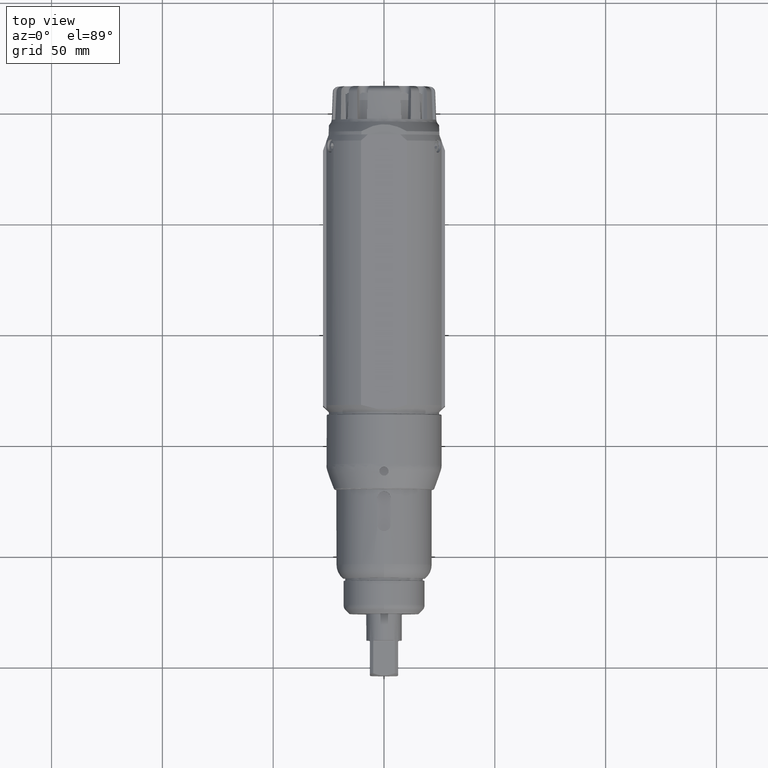
[diagram: clean part render]
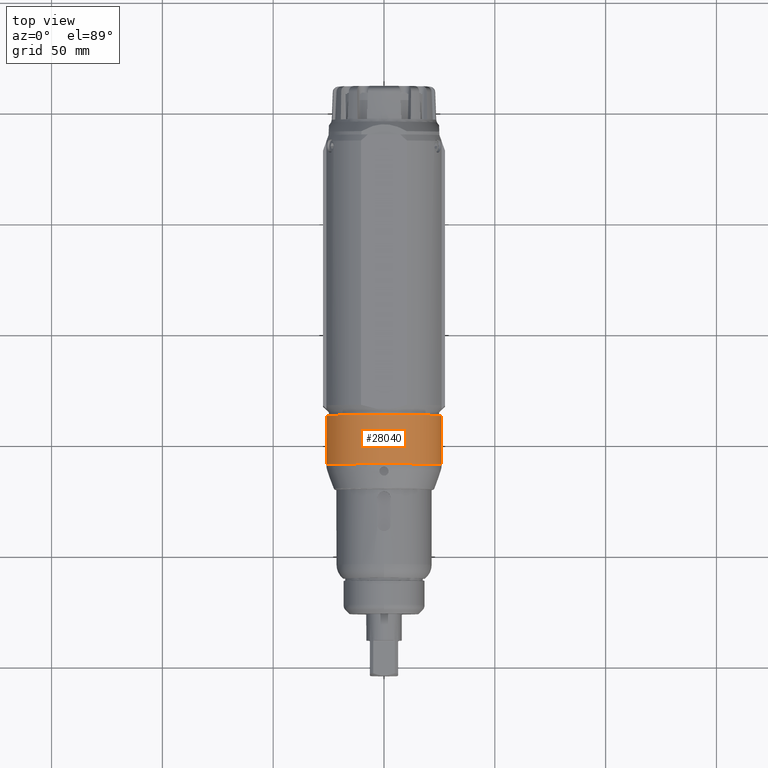
[diagram: same view with one face highlighted and labeled with its STEP entity id]
A machine part, top view. The second image highlights one B-rep face of the part: STEP entity #28040.
In plain terms, the highlighted cylindrical surface (bore or boss wall) has radius 26 mm, axis along (-0, 1, 0).
Its self-contained STEP definition (entity closure, byte-faithful):
#443=CYLINDRICAL_SURFACE('',#30201,26.);
#1654=LINE('',#48031,#3381);
#1936=LINE('',#51633,#3663);
#1937=LINE('',#51648,#3664);
#1938=LINE('',#51663,#3665);
#1939=LINE('',#51665,#3666);
#3381=VECTOR('',#33610,10.);
#3663=VECTOR('',#34860,10.);
#3664=VECTOR('',#34861,10.);
#3665=VECTOR('',#34862,10.);
#3666=VECTOR('',#34863,26.);
#5924=FACE_OUTER_BOUND('',#7551,.T.);
#7551=EDGE_LOOP('',(#22049,#22050,#22051,#22052,#22053,#22054,#22055,#22056,
#22057,#22058,#22059,#22060,#22061,#22062,#22063,#22064));
#9093=CIRCLE('',#30197,26.);
#9094=CIRCLE('',#30198,26.);
#9095=CIRCLE('',#30199,26.);
#9096=CIRCLE('',#30200,26.);
#9097=CIRCLE('',#30202,26.);
#9098=CIRCLE('',#30203,26.);
#10245=B_SPLINE_CURVE_WITH_KNOTS('',3,(#51635,#51636,#51637,#51638,#51639,
#51640,#51641,#51642),.UNSPECIFIED.,.F.,.F.,(4,2,2,4),(-0.116018653433451,
-0.0759485325404493,-0.0322967236980446,0.),.UNSPECIFIED.);
#10246=B_SPLINE_CURVE_WITH_KNOTS('',3,(#51643,#51644,#51645,#51646),
 .UNSPECIFIED.,.F.,.F.,(4,4),(1.63126811079099,1.85732828012416),
 .UNSPECIFIED.);
#10247=B_SPLINE_CURVE_WITH_KNOTS('',3,(#51650,#51651,#51652,#51653),
 .UNSPECIFIED.,.F.,.F.,(4,4),(3.34699343810627,3.57330786362146),
 .UNSPECIFIED.);
#10248=B_SPLINE_CURVE_WITH_KNOTS('',3,(#51655,#51656,#51657,#51658,#51659,
#51660,#51661,#51662),.UNSPECIFIED.,.F.,.F.,(4,2,2,4),(-0.143626844621684,
-0.10345805759626,-0.0595353790221382,-0.000139333396592233),
 .UNSPECIFIED.);
#11993=VERTEX_POINT('',#48015);
#11994=VERTEX_POINT('',#48030);
#12382=VERTEX_POINT('',#51586);
#12383=VERTEX_POINT('',#51588);
#12384=VERTEX_POINT('',#51590);
#12386=VERTEX_POINT('',#51603);
#12387=VERTEX_POINT('',#51619);
#12388=VERTEX_POINT('',#51632);
#12389=VERTEX_POINT('',#51634);
#12390=VERTEX_POINT('',#51647);
#12391=VERTEX_POINT('',#51649);
#12392=VERTEX_POINT('',#51654);
#12393=VERTEX_POINT('',#51664);
#12394=VERTEX_POINT('',#51666);
#15238=EDGE_CURVE('',#11993,#11994,#1654,.T.);
#15934=EDGE_CURVE('',#12382,#12383,#9093,.T.);
#15935=EDGE_CURVE('',#12383,#12384,#9094,.T.);
#15938=EDGE_CURVE('',#12386,#11993,#9095,.T.);
#15940=EDGE_CURVE('',#12387,#12382,#9096,.T.);
#15941=EDGE_CURVE('',#12388,#12387,#1936,.T.);
#15942=EDGE_CURVE('',#12389,#12388,#10245,.T.);
#15943=EDGE_CURVE('',#11994,#12389,#10246,.T.);
#15944=EDGE_CURVE('',#12390,#12386,#1937,.T.);
#15945=EDGE_CURVE('',#12391,#12390,#10247,.T.);
#15946=EDGE_CURVE('',#12392,#12391,#10248,.T.);
#15947=EDGE_CURVE('',#12384,#12392,#1938,.T.);
#15948=EDGE_CURVE('',#12383,#12393,#1939,.T.);
#15949=EDGE_CURVE('',#12393,#12394,#9097,.T.);
#15950=EDGE_CURVE('',#12394,#12393,#9098,.T.);
#22049=ORIENTED_EDGE('',*,*,#15941,.F.);
#22050=ORIENTED_EDGE('',*,*,#15942,.F.);
#22051=ORIENTED_EDGE('',*,*,#15943,.F.);
#22052=ORIENTED_EDGE('',*,*,#15238,.F.);
#22053=ORIENTED_EDGE('',*,*,#15938,.F.);
#22054=ORIENTED_EDGE('',*,*,#15944,.F.);
#22055=ORIENTED_EDGE('',*,*,#15945,.F.);
#22056=ORIENTED_EDGE('',*,*,#15946,.F.);
#22057=ORIENTED_EDGE('',*,*,#15947,.F.);
#22058=ORIENTED_EDGE('',*,*,#15935,.F.);
#22059=ORIENTED_EDGE('',*,*,#15948,.T.);
#22060=ORIENTED_EDGE('',*,*,#15949,.T.);
#22061=ORIENTED_EDGE('',*,*,#15950,.T.);
#22062=ORIENTED_EDGE('',*,*,#15948,.F.);
#22063=ORIENTED_EDGE('',*,*,#15934,.F.);
#22064=ORIENTED_EDGE('',*,*,#15940,.F.);
#28040=ADVANCED_FACE('',(#5924),#443,.T.);
#30197=AXIS2_PLACEMENT_3D('',#51589,#34850,#34851);
#30198=AXIS2_PLACEMENT_3D('',#51591,#34852,#34853);
#30199=AXIS2_PLACEMENT_3D('',#51618,#34854,#34855);
#30200=AXIS2_PLACEMENT_3D('',#51630,#34856,#34857);
#30201=AXIS2_PLACEMENT_3D('',#51631,#34858,#34859);
#30202=AXIS2_PLACEMENT_3D('',#51667,#34864,#34865);
#30203=AXIS2_PLACEMENT_3D('',#51668,#34866,#34867);
#33610=DIRECTION('',(4.96729109400403E-16,-1.,-5.92105642227079E-16));
#34850=DIRECTION('center_axis',(-4.96729109400403E-16,1.,5.92105642227079E-16));
#34851=DIRECTION('ref_axis',(-3.94129173741931E-15,5.92105642227077E-16,
-1.));
#34852=DIRECTION('center_axis',(-4.96729109400403E-16,1.,5.92105642227079E-16));
#34853=DIRECTION('ref_axis',(-3.94129173741931E-15,5.92105642227077E-16,
-1.));
#34854=DIRECTION('center_axis',(-4.96729109400403E-16,1.,5.92105642227079E-16));
#34855=DIRECTION('ref_axis',(-3.94129173741931E-15,5.92105642227077E-16,
-1.));
#34856=DIRECTION('center_axis',(-4.96729109400403E-16,1.,5.92105642227079E-16));
#34857=DIRECTION('ref_axis',(-3.94129173741931E-15,5.92105642227077E-16,
-1.));
#34858=DIRECTION('center_axis',(-4.96729109400403E-16,1.,5.92105642227079E-16));
#34859=DIRECTION('ref_axis',(-1.,-4.96729109400405E-16,3.94129173741931E-15));
#34860=DIRECTION('',(-4.96729109400403E-16,1.,5.92105642227079E-16));
#34861=DIRECTION('',(-4.96729109400403E-16,1.,5.92105642227079E-16));
#34862=DIRECTION('',(4.96729109400403E-16,-1.,-5.92105642227079E-16));
#34863=DIRECTION('',(4.96729109400403E-16,-1.,-5.92105642227079E-16));
#34864=DIRECTION('center_axis',(-4.96729109400403E-16,1.,5.92105642227079E-16));
#34865=DIRECTION('ref_axis',(-3.94129173741931E-15,5.92105642227077E-16,
-1.));
#34866=DIRECTION('center_axis',(-4.96729109400403E-16,1.,5.92105642227079E-16));
#34867=DIRECTION('ref_axis',(-3.94129173741931E-15,5.92105642227077E-16,
-1.));
#48015=CARTESIAN_POINT('',(-14.9209611058745,10.9999999999998,-21.2923676390621));
#48030=CARTESIAN_POINT('',(-14.9209611070289,8.60495545420263,-21.292367638135));
#48031=CARTESIAN_POINT('',(-14.9209611058744,-0.0602796124123026,-21.2923676390622));
#51586=CARTESIAN_POINT('',(1.01587197917531E-13,10.9999999999998,26.));
#51588=CARTESIAN_POINT('',(26.,10.9999999999999,-8.68338578695965E-14));
#51589=CARTESIAN_POINT('Origin',(-4.07046893315388E-15,10.9999999999998,
1.88238089810887E-14));
#51590=CARTESIAN_POINT('',(17.1973835219211,10.9999999999999,-19.4999999999989));
#51591=CARTESIAN_POINT('Origin',(-4.07046893315388E-15,10.9999999999998,
1.88238089810887E-14));
#51603=CARTESIAN_POINT('',(14.9209611058739,10.9999999999999,-21.2923676390625));
#51618=CARTESIAN_POINT('Origin',(-4.07046893315388E-15,10.9999999999998,
1.88238089810887E-14));
#51619=CARTESIAN_POINT('',(-17.1973835219211,10.9999999999998,-19.4999999999989));
#51630=CARTESIAN_POINT('Origin',(-4.07046893315388E-15,10.9999999999998,
1.88238089810887E-14));
#51631=CARTESIAN_POINT('Origin',(1.42349390843901E-15,-0.0602796124122573,
1.22749550179704E-14));
#51632=CARTESIAN_POINT('',(-17.1973835219211,10.9594559513084,-19.4999999999989));
#51633=CARTESIAN_POINT('',(-17.1973835219211,-0.0602796124122545,-19.4999999999989));
#51634=CARTESIAN_POINT('',(-16.6143649741126,9.68372110302352,-19.9990718901948));
#51635=CARTESIAN_POINT('Ctrl Pts',(-16.6144177388943,9.68361382181723,-19.999028056321));
#51636=CARTESIAN_POINT('Ctrl Pts',(-16.7264405323704,9.77688205481294,-19.9059638593086));
#51637=CARTESIAN_POINT('Ctrl Pts',(-16.8336004983955,9.90504096511737,-19.8152657383915));
#51638=CARTESIAN_POINT('Ctrl Pts',(-17.0269491568778,10.2286170199386,-19.6494437599297));
#51639=CARTESIAN_POINT('Ctrl Pts',(-17.1016880975856,10.4143413535805,-19.5840731667552));
#51640=CARTESIAN_POINT('Ctrl Pts',(-17.1807848775815,10.7263714583233,-19.5146773785574));
#51641=CARTESIAN_POINT('Ctrl Pts',(-17.1973835219204,10.8517994942753,-19.4999999999995));
#51642=CARTESIAN_POINT('Ctrl Pts',(-17.1973835219204,10.9594552399354,-19.4999999999995));
#51643=CARTESIAN_POINT('Ctrl Pts',(-14.9209611070699,8.60495545424832,-21.2923676382244));
#51644=CARTESIAN_POINT('Ctrl Pts',(-15.5352124151837,8.89552877342101,-20.8619213847097));
#51645=CARTESIAN_POINT('Ctrl Pts',(-16.1061581411185,9.26248352363429,-20.4212499779236));
#51646=CARTESIAN_POINT('Ctrl Pts',(-16.6139411322349,9.68458285714191,-19.9994239930712));
#51647=CARTESIAN_POINT('',(14.9209611070282,8.60495545420249,-21.2923676381355));
#51648=CARTESIAN_POINT('',(14.9209611058737,-0.0602796124122877,-21.2923676390627));
#51649=CARTESIAN_POINT('',(16.6140875949685,9.68352053582379,-19.9993023213928));
#51650=CARTESIAN_POINT('Ctrl Pts',(16.613674244624,9.6843610141225,-19.9996456991997));
#51651=CARTESIAN_POINT('Ctrl Pts',(16.1089189139861,9.26481547766217,-20.4189451589291));
#51652=CARTESIAN_POINT('Ctrl Pts',(15.5375806048626,8.89664905224896,-20.86026183859));
#51653=CARTESIAN_POINT('Ctrl Pts',(14.9209611070692,8.60495545424818,-21.2923676382249));
#51654=CARTESIAN_POINT('',(17.1973835143129,10.9593290627,-19.5000000067087));
#51655=CARTESIAN_POINT('Ctrl Pts',(17.1973835143129,10.9593290627,-19.5000000067087));
#51656=CARTESIAN_POINT('Ctrl Pts',(17.19736965646,10.844413096733,-19.5000122281861));
#51657=CARTESIAN_POINT('Ctrl Pts',(17.1784504429397,10.7092974747267,-19.5167476437263));
#51658=CARTESIAN_POINT('Ctrl Pts',(17.0982121863396,10.410946824427,-19.5870938771513));
#51659=CARTESIAN_POINT('Ctrl Pts',(17.0369698375542,10.260138187631,-19.6405480021222));
#51660=CARTESIAN_POINT('Ctrl Pts',(16.8635176882639,9.94197894400017,-19.7898732539323));
#51661=CARTESIAN_POINT('Ctrl Pts',(16.7424753075671,9.79016137271955,-19.8926456797545));
#51662=CARTESIAN_POINT('Ctrl Pts',(16.6141509298241,9.68339175506337,-19.9992497079522));
#51663=CARTESIAN_POINT('',(17.1973835219211,-0.0602796124122374,-19.4999999999989));
#51664=CARTESIAN_POINT('',(26.,-11.1205592248243,-9.99315657958332E-14));
#51665=CARTESIAN_POINT('',(26.,-0.0602796124122444,-9.33827118327149E-14));
#51666=CARTESIAN_POINT('',(1.12575123600717E-13,-11.1205592248244,26.));
#51667=CARTESIAN_POINT('Origin',(6.9174567500319E-15,-11.1205592248243,
5.72610105485206E-15));
#51668=CARTESIAN_POINT('Origin',(6.9174567500319E-15,-11.1205592248243,
5.72610105485206E-15));